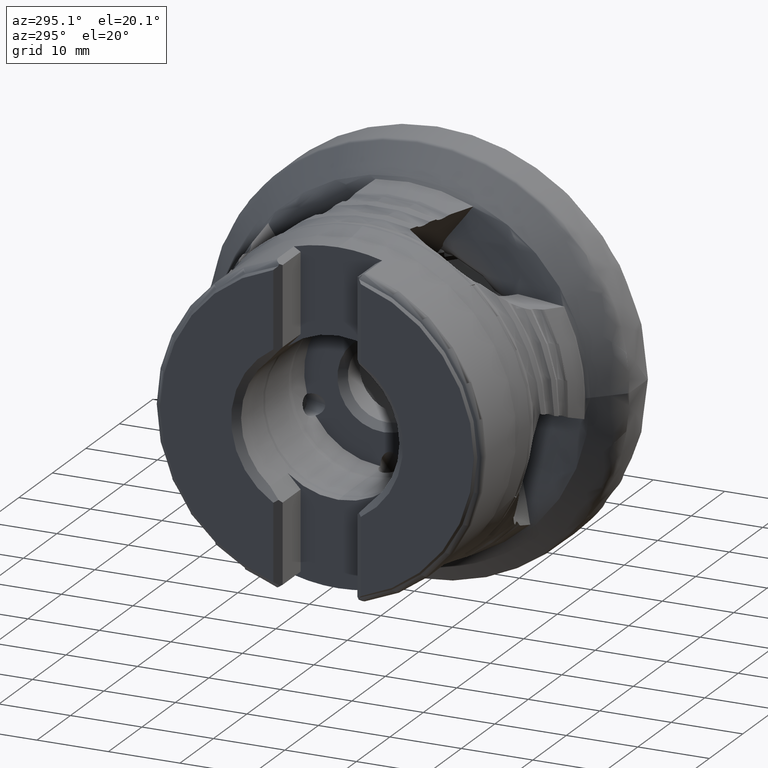
[diagram: clean part render]
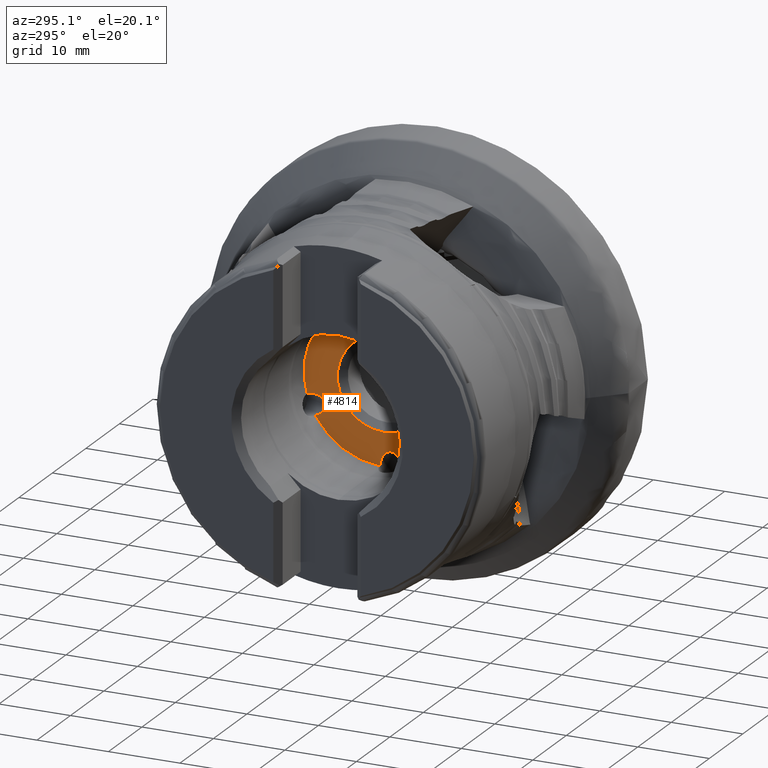
[diagram: same view with one face highlighted and labeled with its STEP entity id]
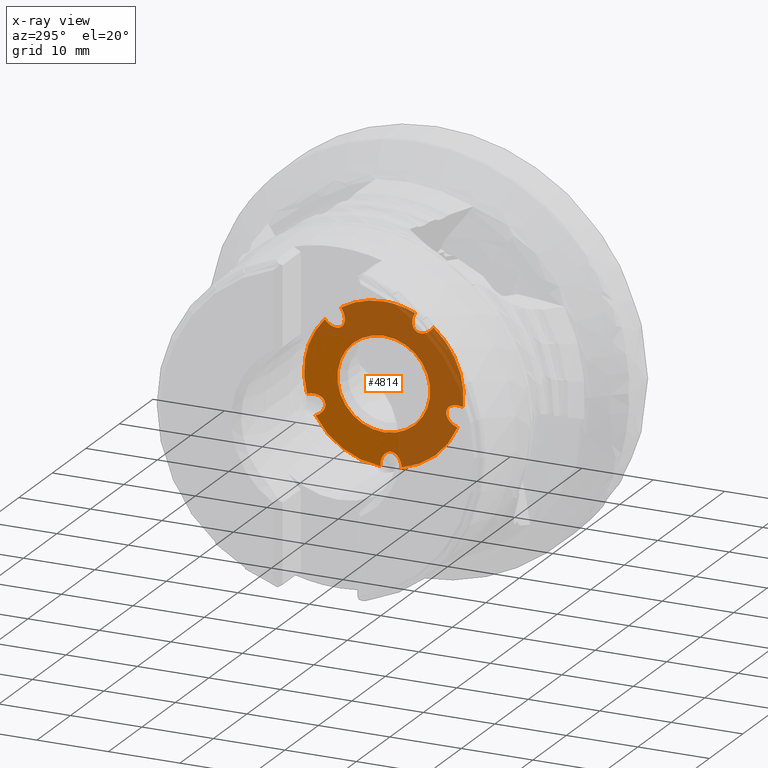
[diagram: x-ray of the same camera — body ghosted, the highlighted face saturated]
A machine part, auxiliary view. The second image highlights one B-rep face of the part: STEP entity #4814.
The next image is the same camera in x-ray: the body ghosted, the highlighted face saturated — about 61% of this face is hidden behind the body in this view.
In plain terms, the highlighted planar face has unit normal (1, 0, -0).
Its self-contained STEP definition (entity closure, byte-faithful):
#52 = CARTESIAN_POINT ( 'NONE',  ( -19.10400000000001300, 0.5063330959373190100, -11.13849751070387300 ) ) ;
#136 = AXIS2_PLACEMENT_3D ( 'NONE', #7278, #2863, #3560 ) ;
#218 = CARTESIAN_POINT ( 'NONE',  ( -19.10400000000001300, -8.717342003944311900, -3.257550541438259700 ) ) ;
#278 = CARTESIAN_POINT ( 'NONE',  ( -19.10400000000001300, 0.0000000000000000000, 0.0000000000000000000 ) ) ;
#298 = CARTESIAN_POINT ( 'NONE',  ( -19.10400000000001300, 0.0000000000000000000, 0.0000000000000000000 ) ) ;
#383 = DIRECTION ( 'NONE',  ( 0.0000000000000000000, 0.0000000000000000000, -1.000000000000000000 ) ) ;
#435 = DIRECTION ( 'NONE',  ( 0.0000000000000000000, 0.0000000000000000000, -1.000000000000000000 ) ) ;
#440 = VERTEX_POINT ( 'NONE', #3480 ) ;
#441 = EDGE_CURVE ( 'NONE', #7407, #6315, #5435, .T. ) ;
#515 = CARTESIAN_POINT ( 'NONE',  ( -19.10400000000001300, -0.9934870773915592800, -8.984330624621179600 ) ) ;
#849 = CARTESIAN_POINT ( 'NONE',  ( -19.10400000000001300, 8.185038365359083900, -4.057257834289237600 ) ) ;
#924 = CARTESIAN_POINT ( 'NONE',  ( -19.10400000000001300, 0.5063330959373190100, -11.13849751070387300 ) ) ;
#1015 = CARTESIAN_POINT ( 'NONE',  ( -19.10400000000001300, 0.0000000000000000000, 0.0000000000000000000 ) ) ;
#1102 =( BOUNDED_CURVE ( )  B_SPLINE_CURVE ( 3, ( #515, #8724, #1262, #1505 ),
 .UNSPECIFIED., .F., .F. ) 
 B_SPLINE_CURVE_WITH_KNOTS ( ( 4, 4 ),
 ( 3.141592653589793100, 4.600950881970729400 ),
 .UNSPECIFIED. ) 
 CURVE ( )  GEOMETRIC_REPRESENTATION_ITEM ( )  RATIONAL_B_SPLINE_CURVE ( ( 1.000000000000000000, 0.8302589019862869300, 0.8302589019862869300, 1.000000000000000000 ) ) 
 REPRESENTATION_ITEM ( '' )  );
#1104 = EDGE_CURVE ( 'NONE', #8309, #440, #1102, .T. ) ;
#1133 = VERTEX_POINT ( 'NONE', #8918 ) ;
#1166 = DIRECTION ( 'NONE',  ( 0.0000000000000000000, 0.0000000000000000000, -1.000000000000000000 ) ) ;
#1189 = VERTEX_POINT ( 'NONE', #9590 ) ;
#1243 = CARTESIAN_POINT ( 'NONE',  ( -19.10400000000001300, 5.974015917866424300, 9.414543738975170900 ) ) ;
#1262 = CARTESIAN_POINT ( 'NONE',  ( -19.10400000000001300, -2.394892206681313400, -9.741288648424694300 ) ) ;
#1272 = EDGE_CURVE ( 'NONE', #7767, #4686, #7173, .T. ) ;
#1480 =( BOUNDED_CURVE ( )  B_SPLINE_CURVE ( 3, ( #7555, #5206, #7453, #8972 ),
 .UNSPECIFIED., .F., .F. ) 
 B_SPLINE_CURVE_WITH_KNOTS ( ( 4, 4 ),
 ( 2.889693557950963500, 4.600950881971011900 ),
 .UNSPECIFIED. ) 
 CURVE ( )  GEOMETRIC_REPRESENTATION_ITEM ( )  RATIONAL_B_SPLINE_CURVE ( ( 1.000000000000000000, 0.7704960066848036700, 0.7704960066848036700, 1.000000000000000000 ) ) 
 REPRESENTATION_ITEM ( '' )  );
#1485 = EDGE_CURVE ( 'NONE', #7046, #440, #3561, .T. ) ;
#1498 = CARTESIAN_POINT ( 'NONE',  ( -19.10400000000001300, 0.0000000000000000000, 0.0000000000000000000 ) ) ;
#1505 = CARTESIAN_POINT ( 'NONE',  ( -19.10400000000001300, -2.484182874688099400, -10.86974403769951700 ) ) ;
#1549 = EDGE_CURVE ( 'NONE', #6315, #1133, #2613, .T. ) ;
#1566 = CARTESIAN_POINT ( 'NONE',  ( -19.10400000000001300, 6.638554543341591300, 6.588362594760235800 ) ) ;
#1812 = CARTESIAN_POINT ( 'NONE',  ( -19.10400000000001300, -10.29358779940913700, -4.285387988952923200 ) ) ;
#1817 =( BOUNDED_CURVE ( )  B_SPLINE_CURVE ( 3, ( #6294, #7047, #7753, #2534 ),
 .UNSPECIFIED., .F., .F. ) 
 B_SPLINE_CURVE_WITH_KNOTS ( ( 4, 4 ),
 ( 3.367426363281409900, 4.600950881970730300 ),
 .UNSPECIFIED. ) 
 CURVE ( )  GEOMETRIC_REPRESENTATION_ITEM ( )  RATIONAL_B_SPLINE_CURVE ( ( 1.000000000000000000, 0.8771702857409199300, 0.8771702857409199300, 1.000000000000000000 ) ) 
 REPRESENTATION_ITEM ( '' )  );
#1842 = DIRECTION ( 'NONE',  ( 1.000000000000000000, -0.0000000000000000000, -0.0000000000000000000 ) ) ;
#1985 = EDGE_CURVE ( 'NONE', #1189, #6405, #1480, .T. ) ;
#2005 = CARTESIAN_POINT ( 'NONE',  ( -19.10400000000001300, -5.169449658907455000, 7.639201933015362700 ) ) ;
#2014 = CARTESIAN_POINT ( 'NONE',  ( -19.10400000000001300, 5.266185650423568500, 6.588362594760237600 ) ) ;
#2053 = FACE_BOUND ( 'NONE', #9004, .T. ) ;
#2129 = ORIENTED_EDGE ( 'NONE', *, *, #441, .T. ) ;
#2134 = CARTESIAN_POINT ( 'NONE',  ( -19.10400000000001300, 6.638554543341591300, 6.588362594760235800 ) ) ;
#2201 = ORIENTED_EDGE ( 'NONE', *, *, #1272, .T. ) ;
#2246 = VERTEX_POINT ( 'NONE', #2555 ) ;
#2310 = CARTESIAN_POINT ( 'NONE',  ( -19.10400000000001300, 6.499999999999987600, 0.0000000000000000000 ) ) ;
#2340 = CARTESIAN_POINT ( 'NONE',  ( -19.10400000000001300, 0.0000000000000000000, 0.0000000000000000000 ) ) ;
#2394 = VERTEX_POINT ( 'NONE', #8930 ) ;
#2467 = ORIENTED_EDGE ( 'NONE', *, *, #4931, .F. ) ;
#2477 = EDGE_CURVE ( 'NONE', #3123, #2394, #7846, .T. ) ;
#2516 = CARTESIAN_POINT ( 'NONE',  ( -19.10400000000001300, -8.717342003944310100, -2.513465346026550600 ) ) ;
#2534 = CARTESIAN_POINT ( 'NONE',  ( -19.10400000000001300, 9.570086172100630500, -5.721533942795946200 ) ) ;
#2555 = CARTESIAN_POINT ( 'NONE',  ( -19.10400000000001300, 7.960204194457779700E-016, -6.499999999999987600 ) ) ;
#2571 = ORIENTED_EDGE ( 'NONE', *, *, #1549, .T. ) ;
#2613 =( BOUNDED_CURVE ( )  B_SPLINE_CURVE ( 3, ( #1566, #3771, #3810, #9066 ),
 .UNSPECIFIED., .F., .F. ) 
 B_SPLINE_CURVE_WITH_KNOTS ( ( 4, 4 ),
 ( 3.601329850507967800, 4.600950881970734800 ),
 .UNSPECIFIED. ) 
 CURVE ( )  GEOMETRIC_REPRESENTATION_ITEM ( )  RATIONAL_B_SPLINE_CURVE ( ( 1.000000000000000000, 0.9184489264885860000, 0.9184489264885860000, 1.000000000000000000 ) ) 
 REPRESENTATION_ITEM ( '' )  );
#2669 = EDGE_LOOP ( 'NONE', ( #2467, #5056, #9407, #5475, #5038, #9082, #7716, #8074, #3088, #5392, #7304, #2201, #7161, #9136, #2129, #2571 ) ) ;
#2691 = CARTESIAN_POINT ( 'NONE',  ( -19.10400000000001300, 6.638554543341591300, 6.588362594760235800 ) ) ;
#2863 = DIRECTION ( 'NONE',  ( 1.000000000000000000, -0.0000000000000000000, -0.0000000000000000000 ) ) ;
#2959 = AXIS2_PLACEMENT_3D ( 'NONE', #8692, #6427, #1166 ) ;
#3079 = CARTESIAN_POINT ( 'NONE',  ( -19.10400000000001300, 10.74980617075134100, -2.960433632303598500 ) ) ;
#3088 = ORIENTED_EDGE ( 'NONE', *, *, #1985, .T. ) ;
#3123 = VERTEX_POINT ( 'NONE', #9265 ) ;
#3147 = CARTESIAN_POINT ( 'NONE',  ( -19.10400000000001700, 0.5201062154194631100, -9.880696788721939700 ) ) ;
#3279 = CARTESIAN_POINT ( 'NONE',  ( -19.10400000000001300, 1.365481181049298400E-015, 11.14999999999999700 ) ) ;
#3302 = DIRECTION ( 'NONE',  ( 0.0000000000000000000, 0.0000000000000000000, -1.000000000000000000 ) ) ;
#3361 = DIRECTION ( 'NONE',  ( 0.0000000000000000000, 0.0000000000000000000, -1.000000000000000000 ) ) ;
#3397 = CIRCLE ( 'NONE', #5608, 6.499999999999987600 ) ;
#3417 = CIRCLE ( 'NONE', #136, 6.499999999999987600 ) ;
#3480 = CARTESIAN_POINT ( 'NONE',  ( -19.10400000000001300, -2.484182874688099400, -10.86974403769951700 ) ) ;
#3530 = VERTEX_POINT ( 'NONE', #9650 ) ;
#3560 = DIRECTION ( 'NONE',  ( 0.0000000000000000000, 0.0000000000000000000, -1.000000000000000000 ) ) ;
#3561 = CIRCLE ( 'NONE', #6967, 11.14999999999999700 ) ;
#3685 = CARTESIAN_POINT ( 'NONE',  ( -19.10400000000001300, -3.898078619656437200, 7.639201933015363500 ) ) ;
#3740 = EDGE_CURVE ( 'NONE', #3530, #6405, #7795, .T. ) ;
#3771 = CARTESIAN_POINT ( 'NONE',  ( -19.10400000000001300, 7.209429444798080200, 6.588362594760236700 ) ) ;
#3793 = FACE_OUTER_BOUND ( 'NONE', #2669, .T. ) ;
#3802 = CIRCLE ( 'NONE', #5508, 11.14999999999999700 ) ;
#3810 = CARTESIAN_POINT ( 'NONE',  ( -19.10400000000001300, 7.801368723800335300, 6.911640122202589600 ) ) ;
#3943 = ORIENTED_EDGE ( 'NONE', *, *, #5935, .T. ) ;
#4077 = VERTEX_POINT ( 'NONE', #5923 ) ;
#4138 = AXIS2_PLACEMENT_3D ( 'NONE', #1015, #1842, #3302 ) ;
#4210 = EDGE_CURVE ( 'NONE', #2394, #6178, #1817, .T. ) ;
#4326 = CARTESIAN_POINT ( 'NONE',  ( -19.10400000000001300, -5.814320422232055000, 7.639201933015362700 ) ) ;
#4366 = CARTESIAN_POINT ( 'NONE',  ( -19.10400000000001300, 5.974015917866424300, 9.414543738975170900 ) ) ;
#4373 = CIRCLE ( 'NONE', #5066, 11.14999999999999700 ) ;
#4463 = CARTESIAN_POINT ( 'NONE',  ( -19.10400000000001300, -0.9934870773915592800, -8.984330624621179600 ) ) ;
#4501 = DIRECTION ( 'NONE',  ( 1.000000000000000000, 0.0000000000000000000, -0.0000000000000000000 ) ) ;
#4551 = EDGE_CURVE ( 'NONE', #7991, #4686, #3802, .T. ) ;
#4573 = AXIS2_PLACEMENT_3D ( 'NONE', #2310, #4501, #7526 ) ;
#4686 = VERTEX_POINT ( 'NONE', #5834 ) ;
#4690 = CARTESIAN_POINT ( 'NONE',  ( -19.10400000000001700, -0.1039810195541777800, -8.984330624621181400 ) ) ;
#4796 =( BOUNDED_CURVE ( )  B_SPLINE_CURVE ( 3, ( #1812, #5473, #218, #2516 ),
 .UNSPECIFIED., .F., .F. ) 
 B_SPLINE_CURVE_WITH_KNOTS ( ( 4, 4 ),
 ( 1.555311699363296300, 2.889693557950963500 ),
 .UNSPECIFIED. ) 
 CURVE ( )  GEOMETRIC_REPRESENTATION_ITEM ( )  RATIONAL_B_SPLINE_CURVE ( ( 1.000000000000000000, 0.8570419764088096400, 0.8570419764088096400, 1.000000000000000000 ) ) 
 REPRESENTATION_ITEM ( '' )  );
#4814 = ADVANCED_FACE ( 'NONE', ( #3793, #2053 ), #8232, .F. ) ;
#4931 = EDGE_CURVE ( 'NONE', #3123, #1133, #4373, .T. ) ;
#5038 = ORIENTED_EDGE ( 'NONE', *, *, #5717, .T. ) ;
#5056 = ORIENTED_EDGE ( 'NONE', *, *, #2477, .T. ) ;
#5066 = AXIS2_PLACEMENT_3D ( 'NONE', #278, #6248, #3361 ) ;
#5206 = CARTESIAN_POINT ( 'NONE',  ( -19.10400000000001300, -8.717342003944311900, -1.503621479287057700 ) ) ;
#5298 = CARTESIAN_POINT ( 'NONE',  ( -19.10400000000001300, 9.333249520511461800, -2.482956125389399000 ) ) ;
#5392 = ORIENTED_EDGE ( 'NONE', *, *, #3740, .F. ) ;
#5401 = ORIENTED_EDGE ( 'NONE', *, *, #7437, .T. ) ;
#5435 =( BOUNDED_CURVE ( )  B_SPLINE_CURVE ( 3, ( #1243, #6469, #2014, #2691 ),
 .UNSPECIFIED., .F., .F. ) 
 B_SPLINE_CURVE_WITH_KNOTS ( ( 4, 4 ),
 ( 1.555311699363568100, 3.601329850507967800 ),
 .UNSPECIFIED. ) 
 CURVE ( )  GEOMETRIC_REPRESENTATION_ITEM ( )  RATIONAL_B_SPLINE_CURVE ( ( 1.000000000000000000, 0.6805330188474886200, 0.6805330188474886200, 1.000000000000000000 ) ) 
 REPRESENTATION_ITEM ( '' )  );
#5473 = CARTESIAN_POINT ( 'NONE',  ( -19.10400000000001300, -9.330398633161360400, -3.946712679623219300 ) ) ;
#5475 = ORIENTED_EDGE ( 'NONE', *, *, #6245, .F. ) ;
#5508 = AXIS2_PLACEMENT_3D ( 'NONE', #8750, #6348, #435 ) ;
#5577 = DIRECTION ( 'NONE',  ( 1.000000000000000000, -0.0000000000000000000, -0.0000000000000000000 ) ) ;
#5608 = AXIS2_PLACEMENT_3D ( 'NONE', #1498, #9708, #7360 ) ;
#5717 = EDGE_CURVE ( 'NONE', #8314, #8309, #5803, .T. ) ;
#5735 = CARTESIAN_POINT ( 'NONE',  ( -19.10400000000001300, -5.169449658907455000, 7.639201933015362700 ) ) ;
#5791 = CARTESIAN_POINT ( 'NONE',  ( -19.10400000000001300, -11.06385884490587700, -1.383303097663206800 ) ) ;
#5803 =( BOUNDED_CURVE ( )  B_SPLINE_CURVE ( 3, ( #924, #3147, #4690, #9193 ),
 .UNSPECIFIED., .F., .T. ) 
 B_SPLINE_CURVE_WITH_KNOTS ( ( 4, 4 ),
 ( 1.555311699363573800, 3.141592653589793100 ),
 .UNSPECIFIED. ) 
 CURVE ( )  GEOMETRIC_REPRESENTATION_ITEM ( )  RATIONAL_B_SPLINE_CURVE ( ( 1.000000000000000000, 0.8010740001711045300, 0.8010740001711045300, 1.000000000000000000 ) ) 
 REPRESENTATION_ITEM ( '' )  );
#5834 = CARTESIAN_POINT ( 'NONE',  ( -19.10400000000001300, -4.379329078796805800, 10.25397370874361900 ) ) ;
#5841 = CARTESIAN_POINT ( 'NONE',  ( -19.10400000000001300, -5.169449658907455000, 7.639201933015362700 ) ) ;
#5923 = CARTESIAN_POINT ( 'NONE',  ( -19.10400000000001300, 0.0000000000000000000, 6.499999999999987600 ) ) ;
#5935 = EDGE_CURVE ( 'NONE', #2246, #4077, #3417, .T. ) ;
#6178 = VERTEX_POINT ( 'NONE', #9088 ) ;
#6245 = EDGE_CURVE ( 'NONE', #8314, #6178, #7550, .T. ) ;
#6248 = DIRECTION ( 'NONE',  ( 1.000000000000000000, -0.0000000000000000000, -0.0000000000000000000 ) ) ;
#6257 = CARTESIAN_POINT ( 'NONE',  ( -19.10400000000001300, -4.379329078796805800, 10.25397370874361900 ) ) ;
#6294 = CARTESIAN_POINT ( 'NONE',  ( -19.10400000000001300, 8.185038365359083900, -4.057257834289237600 ) ) ;
#6315 = VERTEX_POINT ( 'NONE', #2134 ) ;
#6348 = DIRECTION ( 'NONE',  ( 1.000000000000000000, -0.0000000000000000000, -0.0000000000000000000 ) ) ;
#6405 = VERTEX_POINT ( 'NONE', #5791 ) ;
#6427 = DIRECTION ( 'NONE',  ( 1.000000000000000000, -0.0000000000000000000, -0.0000000000000000000 ) ) ;
#6469 = CARTESIAN_POINT ( 'NONE',  ( -19.10400000000001300, 4.940686565113415100, 7.972660425011397000 ) ) ;
#6967 = AXIS2_PLACEMENT_3D ( 'NONE', #2340, #9100, #8362 ) ;
#7026 = CARTESIAN_POINT ( 'NONE',  ( -19.10400000000001300, -3.528101454594558800, 8.863579418198783700 ) ) ;
#7046 = VERTEX_POINT ( 'NONE', #7504 ) ;
#7047 = CARTESIAN_POINT ( 'NONE',  ( -19.10400000000001300, 8.185038365359085700, -4.732976094123815300 ) ) ;
#7161 = ORIENTED_EDGE ( 'NONE', *, *, #4551, .F. ) ;
#7173 =( BOUNDED_CURVE ( )  B_SPLINE_CURVE ( 3, ( #5841, #3685, #7026, #6257 ),
 .UNSPECIFIED., .F., .T. ) 
 B_SPLINE_CURVE_WITH_KNOTS ( ( 4, 4 ),
 ( 2.667011070921142300, 4.600950881970819100 ),
 .UNSPECIFIED. ) 
 CURVE ( )  GEOMETRIC_REPRESENTATION_ITEM ( )  RATIONAL_B_SPLINE_CURVE ( ( 1.000000000000000000, 0.7118642758927267200, 0.7118642758927267200, 1.000000000000000000 ) ) 
 REPRESENTATION_ITEM ( '' )  );
#7278 = CARTESIAN_POINT ( 'NONE',  ( -19.10400000000001300, 0.0000000000000000000, 0.0000000000000000000 ) ) ;
#7304 = ORIENTED_EDGE ( 'NONE', *, *, #8263, .T. ) ;
#7342 =( BOUNDED_CURVE ( )  B_SPLINE_CURVE ( 3, ( #8129, #9644, #4326, #5735 ),
 .UNSPECIFIED., .F., .T. ) 
 B_SPLINE_CURVE_WITH_KNOTS ( ( 4, 4 ),
 ( 1.555311699363485500, 2.667011070921142300 ),
 .UNSPECIFIED. ) 
 CURVE ( )  GEOMETRIC_REPRESENTATION_ITEM ( )  RATIONAL_B_SPLINE_CURVE ( ( 1.000000000000000000, 0.8996349315304770200, 0.8996349315304770200, 1.000000000000000000 ) ) 
 REPRESENTATION_ITEM ( '' )  );
#7360 = DIRECTION ( 'NONE',  ( 0.0000000000000000000, 0.0000000000000000000, -1.000000000000000000 ) ) ;
#7407 = VERTEX_POINT ( 'NONE', #4366 ) ;
#7437 = EDGE_CURVE ( 'NONE', #4077, #2246, #3397, .T. ) ;
#7453 = CARTESIAN_POINT ( 'NONE',  ( -19.10400000000001300, -9.732496233861867900, -1.014688705869986300 ) ) ;
#7504 = CARTESIAN_POINT ( 'NONE',  ( -19.10400000000001300, -10.29358779940913700, -4.285387988952923200 ) ) ;
#7526 = DIRECTION ( 'NONE',  ( -0.0000000000000000000, 0.0000000000000000000, -1.000000000000000000 ) ) ;
#7550 = CIRCLE ( 'NONE', #2959, 11.14999999999999700 ) ;
#7555 = CARTESIAN_POINT ( 'NONE',  ( -19.10400000000001300, -8.717342003944310100, -2.513465346026550600 ) ) ;
#7586 = CARTESIAN_POINT ( 'NONE',  ( -19.10400000000001300, 8.185038365359087500, -2.973989185502135000 ) ) ;
#7716 = ORIENTED_EDGE ( 'NONE', *, *, #1485, .F. ) ;
#7753 = CARTESIAN_POINT ( 'NONE',  ( -19.10400000000001300, 8.711370150363995500, -5.365417379303439200 ) ) ;
#7767 = VERTEX_POINT ( 'NONE', #2005 ) ;
#7795 = CIRCLE ( 'NONE', #4138, 11.14999999999999700 ) ;
#7846 =( BOUNDED_CURVE ( )  B_SPLINE_CURVE ( 3, ( #3079, #5298, #7586, #849 ),
 .UNSPECIFIED., .F., .T. ) 
 B_SPLINE_CURVE_WITH_KNOTS ( ( 4, 4 ),
 ( 1.555311699363572100, 3.367426363281409900 ),
 .UNSPECIFIED. ) 
 CURVE ( )  GEOMETRIC_REPRESENTATION_ITEM ( )  RATIONAL_B_SPLINE_CURVE ( ( 1.000000000000000000, 0.7445691482451133300, 0.7445691482451133300, 1.000000000000000000 ) ) 
 REPRESENTATION_ITEM ( '' )  );
#7991 = VERTEX_POINT ( 'NONE', #3279 ) ;
#8074 = ORIENTED_EDGE ( 'NONE', *, *, #9457, .T. ) ;
#8129 = CARTESIAN_POINT ( 'NONE',  ( -19.10400000000001300, -6.956676648915225400, 8.713618651423656700 ) ) ;
#8232 = PLANE ( 'NONE',  #4573 ) ;
#8263 = EDGE_CURVE ( 'NONE', #3530, #7767, #7342, .T. ) ;
#8295 = AXIS2_PLACEMENT_3D ( 'NONE', #298, #5577, #383 ) ;
#8309 = VERTEX_POINT ( 'NONE', #4463 ) ;
#8314 = VERTEX_POINT ( 'NONE', #52 ) ;
#8362 = DIRECTION ( 'NONE',  ( 0.0000000000000000000, 0.0000000000000000000, -1.000000000000000000 ) ) ;
#8692 = CARTESIAN_POINT ( 'NONE',  ( -19.10400000000001300, 0.0000000000000000000, 0.0000000000000000000 ) ) ;
#8724 = CARTESIAN_POINT ( 'NONE',  ( -19.10400000000001300, -1.796405881620723300, -8.984330624621181400 ) ) ;
#8750 = CARTESIAN_POINT ( 'NONE',  ( -19.10400000000001300, 0.0000000000000000000, 0.0000000000000000000 ) ) ;
#8918 = CARTESIAN_POINT ( 'NONE',  ( -19.10400000000001300, 8.269552529380208100, 7.479104288871721600 ) ) ;
#8930 = CARTESIAN_POINT ( 'NONE',  ( -19.10400000000001300, 8.185038365359083900, -4.057257834289237600 ) ) ;
#8934 = CIRCLE ( 'NONE', #8295, 11.14999999999999700 ) ;
#8972 = CARTESIAN_POINT ( 'NONE',  ( -19.10400000000001300, -11.06385884490587700, -1.383303097663206800 ) ) ;
#9002 = EDGE_CURVE ( 'NONE', #7407, #7991, #8934, .T. ) ;
#9004 = EDGE_LOOP ( 'NONE', ( #5401, #3943 ) ) ;
#9066 = CARTESIAN_POINT ( 'NONE',  ( -19.10400000000001300, 8.269552529380208100, 7.479104288871721600 ) ) ;
#9082 = ORIENTED_EDGE ( 'NONE', *, *, #1104, .T. ) ;
#9088 = CARTESIAN_POINT ( 'NONE',  ( -19.10400000000001300, 9.570086172100630500, -5.721533942795946200 ) ) ;
#9100 = DIRECTION ( 'NONE',  ( 1.000000000000000000, -0.0000000000000000000, -0.0000000000000000000 ) ) ;
#9136 = ORIENTED_EDGE ( 'NONE', *, *, #9002, .F. ) ;
#9193 = CARTESIAN_POINT ( 'NONE',  ( -19.10400000000001300, -0.9934870773915592800, -8.984330624621179600 ) ) ;
#9265 = CARTESIAN_POINT ( 'NONE',  ( -19.10400000000001300, 10.74980617075134100, -2.960433632303598500 ) ) ;
#9407 = ORIENTED_EDGE ( 'NONE', *, *, #4210, .T. ) ;
#9457 = EDGE_CURVE ( 'NONE', #7046, #1189, #4796, .T. ) ;
#9590 = CARTESIAN_POINT ( 'NONE',  ( -19.10400000000001300, -8.717342003944310100, -2.513465346026550600 ) ) ;
#9644 = CARTESIAN_POINT ( 'NONE',  ( -19.10400000000001300, -6.476524955563331100, 8.037295530300189800 ) ) ;
#9650 = CARTESIAN_POINT ( 'NONE',  ( -19.10400000000001300, -6.956676648915225400, 8.713618651423656700 ) ) ;
#9708 = DIRECTION ( 'NONE',  ( 1.000000000000000000, -0.0000000000000000000, -0.0000000000000000000 ) ) ;